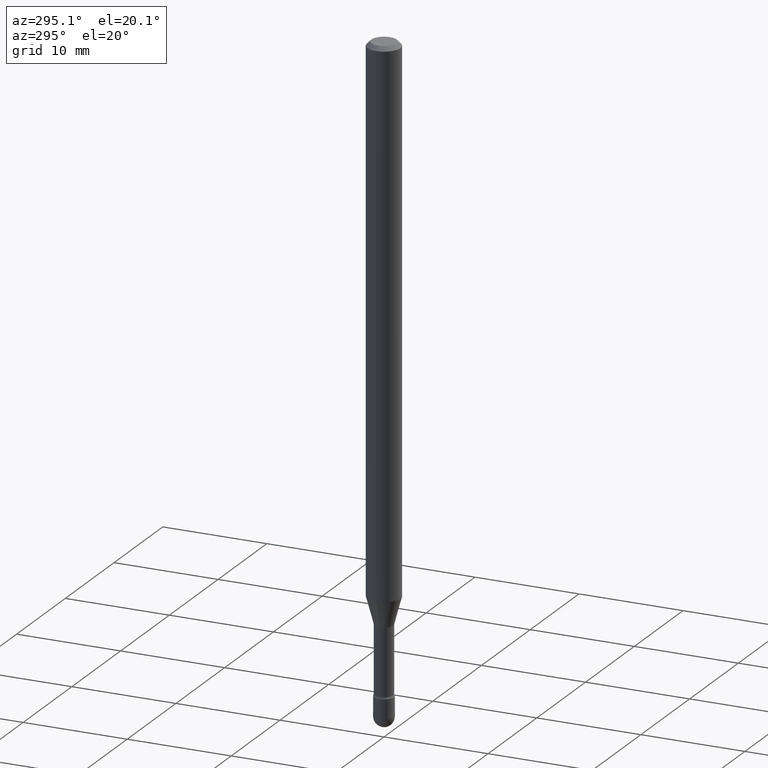
[diagram: clean part render]
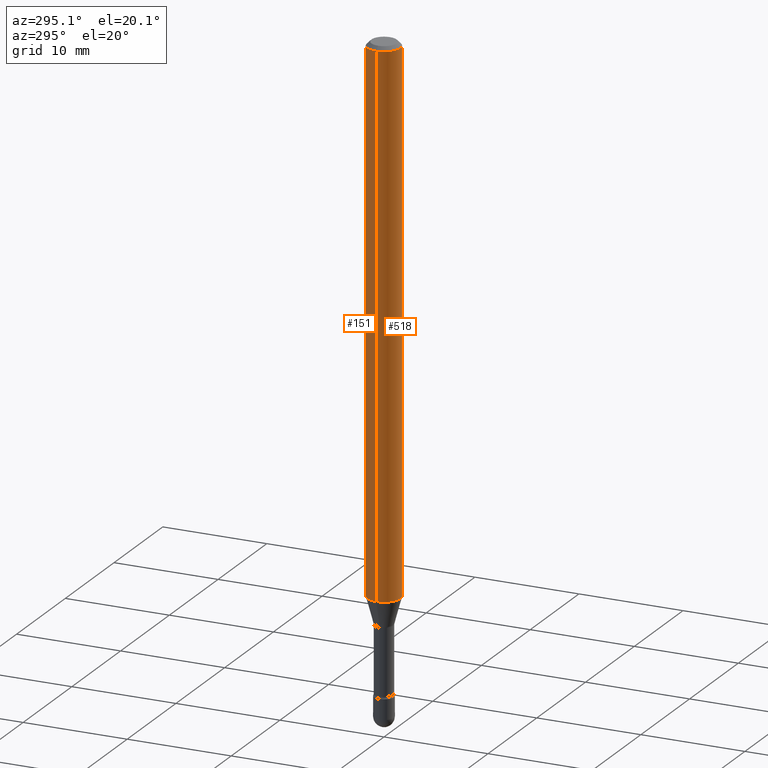
[diagram: same view with one multi-face feature highlighted, each face labeled with its STEP entity id]
A machine part, auxiliary view. The highlighted faces form ONE feature: a constant-radius fillet chain: 2 tangent blend faces with common blend radius 1.5875 mm. The faces share edges in the B-rep.
Their STEP definitions:
[1] entity #518 (Cylinder):
#7 = DIRECTION ( 'NONE',  ( -2.445468806185136597E-29, 3.491481338843145583E-15, 1.000000000000000000 ) ) ;
#49 = DIRECTION ( 'NONE',  ( 1.000000000000000000, -6.982962677686266711E-15, 0.000000000000000000 ) ) ;
#55 = VECTOR ( 'NONE', #344, 39.37007874015748143 ) ;
#57 = EDGE_CURVE ( 'NONE', #353, #298, #71, .T. ) ;
#66 = CARTESIAN_POINT ( 'NONE',  ( -0.06250000000000000000, -3.114256816865067970E-15, -0.01500000000000008271 ) ) ;
#71 = CIRCLE ( 'NONE', #553, 0.06250000000000000000 ) ;
#89 = VERTEX_POINT ( 'NONE', #352 ) ;
#90 = CARTESIAN_POINT ( 'NONE',  ( -0.06250000000000000000, 4.440892098500642925E-16, 4.780733988912429571E-16 ) ) ;
#130 = CARTESIAN_POINT ( 'NONE',  ( 0.06250000000000000000, -4.888073874380391431E-16, -0.01500000000000008271 ) ) ;
#181 = DIRECTION ( 'NONE',  ( 1.000000000000000000, -6.982962677686266711E-15, 4.852736867747366207E-29 ) ) ;
#183 = EDGE_LOOP ( 'NONE', ( #421, #404, #561, #347 ) ) ;
#201 = EDGE_CURVE ( 'NONE', #514, #298, #205, .T. ) ;
#205 = LINE ( 'NONE', #431, #458 ) ;
#206 = CARTESIAN_POINT ( 'NONE',  ( 3.668203209277725232E-31, -5.237222008264747365E-17, -0.01500000000000008271 ) ) ;
#298 = VERTEX_POINT ( 'NONE', #130 ) ;
#311 = CARTESIAN_POINT ( 'NONE',  ( 0.06250000000000000000, -7.500755000703003789E-15, -2.023301615493748873 ) ) ;
#326 = DIRECTION ( 'NONE',  ( 1.000000000000000000, -6.982962677686262766E-15, 0.000000000000000000 ) ) ;
#331 = AXIS2_PLACEMENT_3D ( 'NONE', #439, #7, #181 ) ;
#344 = DIRECTION ( 'NONE',  ( -2.445468806185136877E-29, 3.491481338843145188E-15, 1.000000000000000000 ) ) ;
#347 = ORIENTED_EDGE ( 'NONE', *, *, #57, .F. ) ;
#352 = CARTESIAN_POINT ( 'NONE',  ( -0.06250000000000000000, -6.620230623497551082E-15, -2.023301615493748873 ) ) ;
#353 = VERTEX_POINT ( 'NONE', #66 ) ;
#358 = FACE_OUTER_BOUND ( 'NONE', #183, .T. ) ;
#359 = CARTESIAN_POINT ( 'NONE',  ( 4.947920986193955666E-29, -7.064319833347612909E-15, -2.023301615493748873 ) ) ;
#377 = EDGE_CURVE ( 'NONE', #89, #514, #412, .T. ) ;
#383 = DIRECTION ( 'NONE',  ( -2.445468806185136877E-29, 3.491481338843145188E-15, 1.000000000000000000 ) ) ;
#404 = ORIENTED_EDGE ( 'NONE', *, *, #377, .T. ) ;
#412 = CIRCLE ( 'NONE', #491, 0.06250000000000000000 ) ;
#421 = ORIENTED_EDGE ( 'NONE', *, *, #450, .F. ) ;
#424 = LINE ( 'NONE', #90, #55 ) ;
#431 = CARTESIAN_POINT ( 'NONE',  ( 0.06250000000000000000, -4.364351673553899931E-16, 4.780733988912490708E-16 ) ) ;
#439 = CARTESIAN_POINT ( 'NONE',  ( -1.169113584055446105E-44, 1.669184350826100908E-30, 4.780733988912460139E-16 ) ) ;
#450 = EDGE_CURVE ( 'NONE', #89, #353, #424, .T. ) ;
#458 = VECTOR ( 'NONE', #383, 39.37007874015748143 ) ;
#479 = DIRECTION ( 'NONE',  ( -2.445468806185136597E-29, 3.491481338843145583E-15, 1.000000000000000000 ) ) ;
#491 = AXIS2_PLACEMENT_3D ( 'NONE', #359, #479, #326 ) ;
#514 = VERTEX_POINT ( 'NONE', #311 ) ;
#518 = ADVANCED_FACE ( 'NONE', ( #358 ), #528, .T. ) ;
#528 = CYLINDRICAL_SURFACE ( 'NONE', #331, 0.06250000000000000000 ) ;
#553 = AXIS2_PLACEMENT_3D ( 'NONE', #206, #564, #49 ) ;
#561 = ORIENTED_EDGE ( 'NONE', *, *, #201, .T. ) ;
#564 = DIRECTION ( 'NONE',  ( -2.445468806185136597E-29, 3.491481338843145583E-15, 1.000000000000000000 ) ) ;
[2] entity #151 (Cylinder):
#10 = ORIENTED_EDGE ( 'NONE', *, *, #157, .T. ) ;
#39 = FACE_OUTER_BOUND ( 'NONE', #172, .T. ) ;
#48 = CYLINDRICAL_SURFACE ( 'NONE', #462, 0.06250000000000000000 ) ;
#52 = DIRECTION ( 'NONE',  ( -2.445468806185136597E-29, 3.491481338843145583E-15, 1.000000000000000000 ) ) ;
#55 = VECTOR ( 'NONE', #344, 39.37007874015748143 ) ;
#66 = CARTESIAN_POINT ( 'NONE',  ( -0.06250000000000000000, -3.114256816865067970E-15, -0.01500000000000008271 ) ) ;
#89 = VERTEX_POINT ( 'NONE', #352 ) ;
#90 = CARTESIAN_POINT ( 'NONE',  ( -0.06250000000000000000, 4.440892098500642925E-16, 4.780733988912429571E-16 ) ) ;
#130 = CARTESIAN_POINT ( 'NONE',  ( 0.06250000000000000000, -4.888073874380391431E-16, -0.01500000000000008271 ) ) ;
#143 = ORIENTED_EDGE ( 'NONE', *, *, #201, .F. ) ;
#151 = ADVANCED_FACE ( 'NONE', ( #39 ), #48, .T. ) ;
#157 = EDGE_CURVE ( 'NONE', #514, #89, #469, .T. ) ;
#158 = AXIS2_PLACEMENT_3D ( 'NONE', #563, #341, #391 ) ;
#164 = CARTESIAN_POINT ( 'NONE',  ( -1.169113584055446105E-44, 1.669184350826100908E-30, 4.780733988912460139E-16 ) ) ;
#172 = EDGE_LOOP ( 'NONE', ( #10, #378, #314, #143 ) ) ;
#201 = EDGE_CURVE ( 'NONE', #514, #298, #205, .T. ) ;
#205 = LINE ( 'NONE', #431, #458 ) ;
#220 = DIRECTION ( 'NONE',  ( 1.000000000000000000, -6.982962677686266711E-15, 0.000000000000000000 ) ) ;
#292 = DIRECTION ( 'NONE',  ( -2.445468806185136597E-29, 3.491481338843145583E-15, 1.000000000000000000 ) ) ;
#298 = VERTEX_POINT ( 'NONE', #130 ) ;
#301 = EDGE_CURVE ( 'NONE', #298, #353, #366, .T. ) ;
#305 = CARTESIAN_POINT ( 'NONE',  ( 3.668203209277725232E-31, -5.237222008264747365E-17, -0.01500000000000008271 ) ) ;
#311 = CARTESIAN_POINT ( 'NONE',  ( 0.06250000000000000000, -7.500755000703003789E-15, -2.023301615493748873 ) ) ;
#314 = ORIENTED_EDGE ( 'NONE', *, *, #301, .F. ) ;
#341 = DIRECTION ( 'NONE',  ( -2.445468806185136597E-29, 3.491481338843145583E-15, 1.000000000000000000 ) ) ;
#344 = DIRECTION ( 'NONE',  ( -2.445468806185136877E-29, 3.491481338843145188E-15, 1.000000000000000000 ) ) ;
#352 = CARTESIAN_POINT ( 'NONE',  ( -0.06250000000000000000, -6.620230623497551082E-15, -2.023301615493748873 ) ) ;
#353 = VERTEX_POINT ( 'NONE', #66 ) ;
#366 = CIRCLE ( 'NONE', #527, 0.06250000000000000000 ) ;
#378 = ORIENTED_EDGE ( 'NONE', *, *, #450, .T. ) ;
#383 = DIRECTION ( 'NONE',  ( -2.445468806185136877E-29, 3.491481338843145188E-15, 1.000000000000000000 ) ) ;
#391 = DIRECTION ( 'NONE',  ( 1.000000000000000000, -6.982962677686262766E-15, 0.000000000000000000 ) ) ;
#424 = LINE ( 'NONE', #90, #55 ) ;
#431 = CARTESIAN_POINT ( 'NONE',  ( 0.06250000000000000000, -4.364351673553899931E-16, 4.780733988912490708E-16 ) ) ;
#450 = EDGE_CURVE ( 'NONE', #89, #353, #424, .T. ) ;
#458 = VECTOR ( 'NONE', #383, 39.37007874015748143 ) ;
#462 = AXIS2_PLACEMENT_3D ( 'NONE', #164, #292, #474 ) ;
#469 = CIRCLE ( 'NONE', #158, 0.06250000000000000000 ) ;
#474 = DIRECTION ( 'NONE',  ( 1.000000000000000000, -6.982962677686266711E-15, 4.852736867747366207E-29 ) ) ;
#514 = VERTEX_POINT ( 'NONE', #311 ) ;
#527 = AXIS2_PLACEMENT_3D ( 'NONE', #305, #52, #220 ) ;
#563 = CARTESIAN_POINT ( 'NONE',  ( 4.947920986193955666E-29, -7.064319833347612909E-15, -2.023301615493748873 ) ) ;